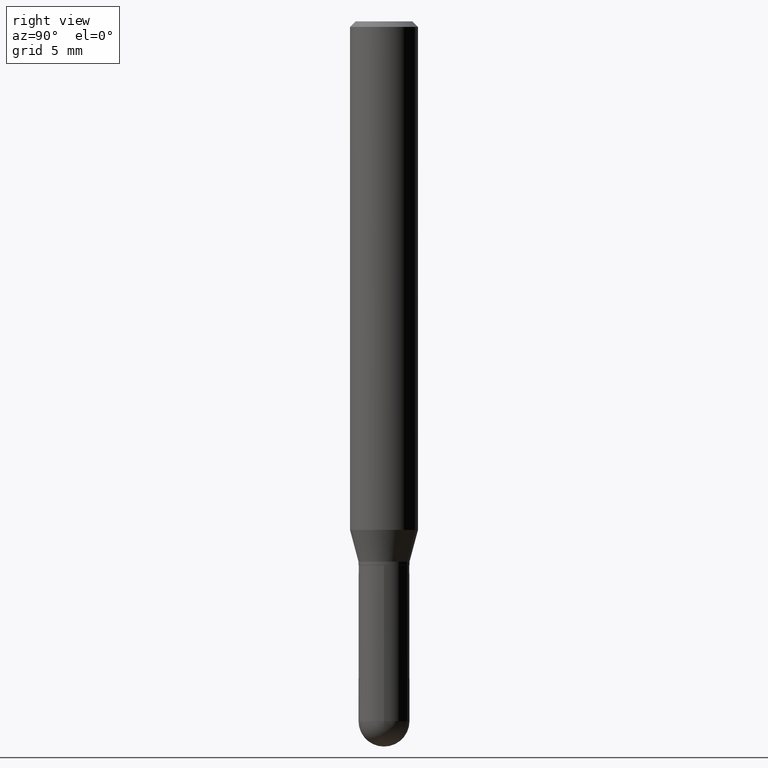
[diagram: clean part render]
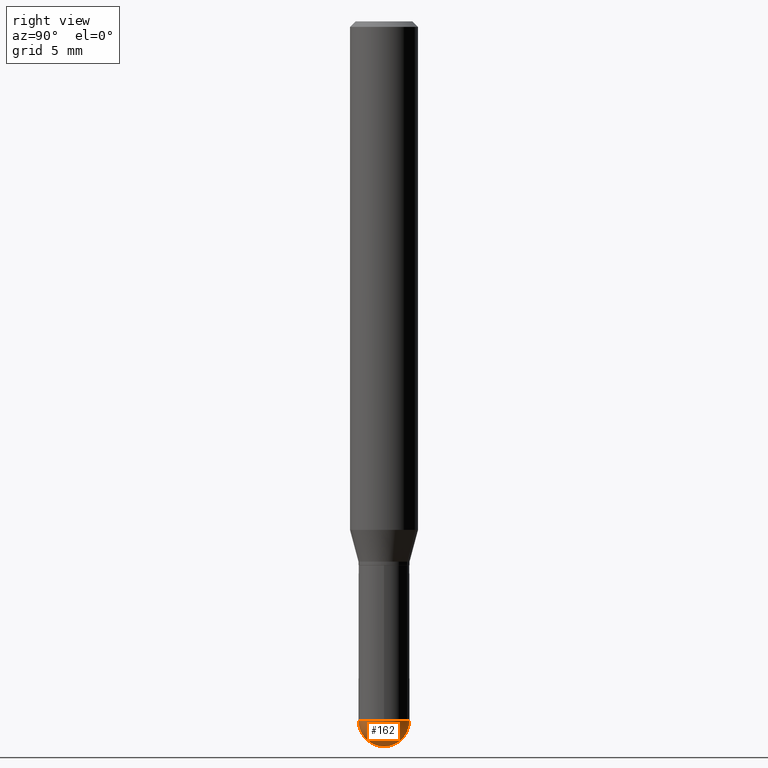
[diagram: same view with one face highlighted and labeled with its STEP entity id]
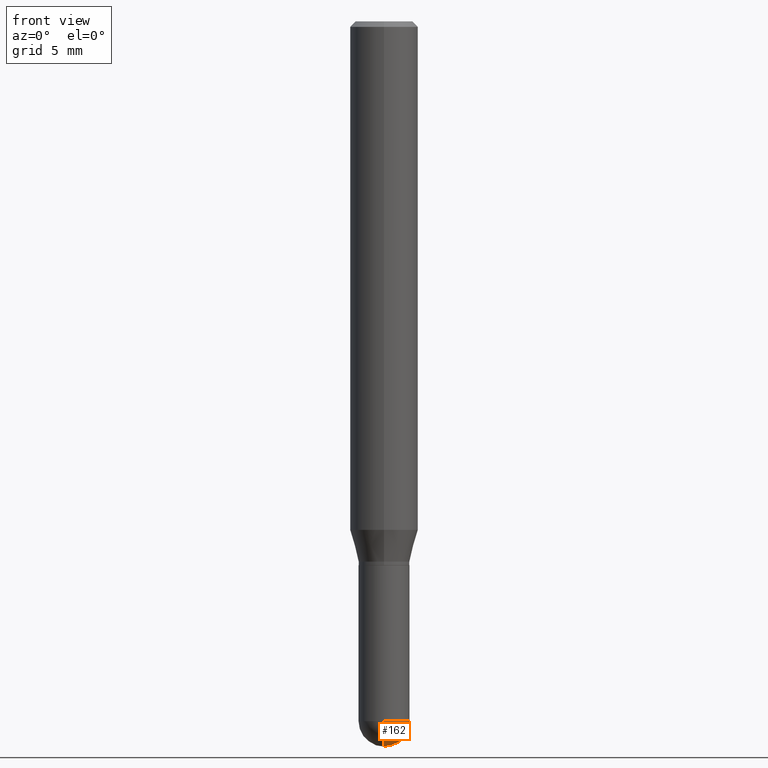
[diagram: same view with one face highlighted and labeled with its STEP entity id]
A machine part, right view. The second image highlights one B-rep face of the part: STEP entity #162.
A second angle (front view) of the same face is appended — the face is thin or edge-on in the first view.
In plain terms, the highlighted spherical surface has radius 1.7856 mm.
Its self-contained STEP definition (entity closure, byte-faithful):
#1 = DIRECTION ( 'NONE',  ( -1.000000000000000000, 6.982962677686265922E-15, -4.883557194083112340E-29 ) ) ;
#2 = ORIENTED_EDGE ( 'NONE', *, *, #352, .F. ) ;
#33 = DIRECTION ( 'NONE',  ( 6.982962677686266711E-15, 1.000000000000000000, 0.000000000000000000 ) ) ;
#43 = VERTEX_POINT ( 'NONE', #449 ) ;
#70 = DIRECTION ( 'NONE',  ( 1.000000000000000000, -6.982962677686265922E-15, 4.883557194083112340E-29 ) ) ;
#77 = DIRECTION ( 'NONE',  ( -1.000000000000000000, 7.105427357601001070E-15, -4.926315508542082329E-29 ) ) ;
#79 = DIRECTION ( 'NONE',  ( -7.105427357601001859E-15, -1.000000000000000000, 0.000000000000000000 ) ) ;
#84 = VERTEX_POINT ( 'NONE', #178 ) ;
#87 = DIRECTION ( 'NONE',  ( -2.445468806185136597E-29, 3.491481338843145583E-15, 1.000000000000000000 ) ) ;
#99 = VERTEX_POINT ( 'NONE', #230 ) ;
#104 = CIRCLE ( 'NONE', #443, 0.07030000000000002913 ) ;
#105 = AXIS2_PLACEMENT_3D ( 'NONE', #355, #1, #159 ) ;
#115 = EDGE_CURVE ( 'NONE', #99, #43, #104, .T. ) ;
#131 = CARTESIAN_POINT ( 'NONE',  ( -4.995115432393033060E-16, -0.07030000000000674598, -1.929699999999999527 ) ) ;
#140 = CARTESIAN_POINT ( 'NONE',  ( 4.719021155295457704E-29, -6.737511539565617508E-15, -1.929699999999999971 ) ) ;
#149 = VERTEX_POINT ( 'NONE', #131 ) ;
#151 = AXIS2_PLACEMENT_3D ( 'NONE', #364, #87, #167 ) ;
#159 = DIRECTION ( 'NONE',  ( 6.982962677686265922E-15, 1.000000000000000000, -3.885985766236503808E-15 ) ) ;
#160 = FACE_OUTER_BOUND ( 'NONE', #305, .T. ) ;
#162 = ADVANCED_FACE ( 'NONE', ( #160 ), #239, .T. ) ;
#167 = DIRECTION ( 'NONE',  ( 1.000000000000000000, -6.982962677686261189E-15, 0.000000000000000000 ) ) ;
#178 = CARTESIAN_POINT ( 'NONE',  ( 0.07030000000000004301, -6.478269050156512001E-15, -1.929699999999999971 ) ) ;
#189 = AXIS2_PLACEMENT_3D ( 'NONE', #140, #306, #417 ) ;
#195 = CIRCLE ( 'NONE', #151, 0.07030000000000004301 ) ;
#230 = CARTESIAN_POINT ( 'NONE',  ( 4.930690017322777259E-29, -6.926034971227925253E-15, -2.000000000000000000 ) ) ;
#239 = SPHERICAL_SURFACE ( 'NONE', #105, 0.07030000000000002913 ) ;
#256 = CIRCLE ( 'NONE', #189, 0.07030000000000004301 ) ;
#272 = CARTESIAN_POINT ( 'NONE',  ( 4.755767650741496407E-29, -6.684888466606255625E-15, -1.929699999999999971 ) ) ;
#282 = CARTESIAN_POINT ( 'NONE',  ( 4.755767650741496407E-29, -6.684888466606255625E-15, -1.929699999999999971 ) ) ;
#305 = EDGE_LOOP ( 'NONE', ( #400, #395, #408, #2 ) ) ;
#306 = DIRECTION ( 'NONE',  ( -2.445468806185136597E-29, 3.491481338843145583E-15, 1.000000000000000000 ) ) ;
#352 = EDGE_CURVE ( 'NONE', #149, #84, #195, .T. ) ;
#355 = CARTESIAN_POINT ( 'NONE',  ( 4.755767650741496407E-29, -6.684888466606255625E-15, -1.929699999999999971 ) ) ;
#364 = CARTESIAN_POINT ( 'NONE',  ( 4.719021155295457704E-29, -6.737511539565617508E-15, -1.929699999999999971 ) ) ;
#376 = EDGE_CURVE ( 'NONE', #84, #43, #256, .T. ) ;
#395 = ORIENTED_EDGE ( 'NONE', *, *, #115, .T. ) ;
#400 = ORIENTED_EDGE ( 'NONE', *, *, #474, .F. ) ;
#408 = ORIENTED_EDGE ( 'NONE', *, *, #376, .F. ) ;
#417 = DIRECTION ( 'NONE',  ( 1.000000000000000000, -6.982962677686261189E-15, 0.000000000000000000 ) ) ;
#432 = CIRCLE ( 'NONE', #510, 0.07030000000000002913 ) ;
#443 = AXIS2_PLACEMENT_3D ( 'NONE', #272, #70, #33 ) ;
#449 = CARTESIAN_POINT ( 'NONE',  ( 4.909022762413921804E-16, 0.07029999999999332616, -1.929700000000000193 ) ) ;
#474 = EDGE_CURVE ( 'NONE', #99, #149, #432, .T. ) ;
#510 = AXIS2_PLACEMENT_3D ( 'NONE', #282, #77, #79 ) ;